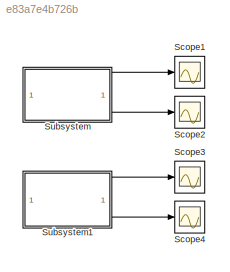
MODEL slx_e83a7e4b726b
KIND model
CONFIG AbsTol = auto
CONFIG EnableMultiTasking = off
CONFIG FixedStep = auto
CONFIG MaxStep = 0.0001
CONFIG MinStep = auto
CONFIG RelTol = 1e-3
CONFIG SampleTimeConstraint = Unconstrained
CONFIG SolverName = VariableStepAuto
CONFIG StartTime = 0.0
CONFIG StopTime = 10
BLOCK [Scope] Scope1
  Floating = off
  NumInputPorts = 1
  ScopeSpecificationString = Simulink.scopes.TimeScopeBlockCfg('CurrentConfiguration', extmgr.ConfigurationSet(extmgr.Configuration('Core','General UI',true),extmgr.Configuration('Core','Source UI',true),extmgr.Configuration('Sources','WiredSimulink',true,'DataLoggingVariableName','ScopeData2'),extmgr.Configuration('Visuals','Time Domain',true,'SerializedDisplays',{struct('MinYLimReal','-0.07025','MaxYLimReal','0.08057','YLab...<+1431ch>
BLOCK [Scope] Scope2
  Floating = off
  NumInputPorts = 1
  ScopeSpecificationString = Simulink.scopes.TimeScopeBlockCfg('CurrentConfiguration', extmgr.ConfigurationSet(extmgr.Configuration('Core','General UI',true),extmgr.Configuration('Core','Source UI',true),extmgr.Configuration('Sources','WiredSimulink',true,'DataLoggingVariableName','ScopeData1'),extmgr.Configuration('Visuals','Time Domain',true,'SerializedDisplays',{struct('MinYLimReal','-0.0664','MaxYLimReal','0.07096','YLabe...<+1405ch>
BLOCK [Scope] Scope3
  Floating = off
  NumInputPorts = 1
  ScopeSpecificationString = Simulink.scopes.TimeScopeBlockCfg('CurrentConfiguration', extmgr.ConfigurationSet(extmgr.Configuration('Core','General UI',true),extmgr.Configuration('Core','Source UI',true),extmgr.Configuration('Sources','WiredSimulink',true,'DataLoggingVariableName','ScopeData1'),extmgr.Configuration('Visuals','Time Domain',true,'SerializedDisplays',{struct('MinYLimReal','-0.07025','MaxYLimReal','0.08057','YLab...<+1430ch>
BLOCK [Scope] Scope4
  Floating = off
  NumInputPorts = 1
  ScopeSpecificationString = Simulink.scopes.TimeScopeBlockCfg('CurrentConfiguration', extmgr.ConfigurationSet(extmgr.Configuration('Core','General UI',true),extmgr.Configuration('Core','Source UI',true),extmgr.Configuration('Sources','WiredSimulink',true,'DataLoggingVariableName','ScopeData2'),extmgr.Configuration('Visuals','Time Domain',true,'SerializedDisplays',{struct('MinYLimReal','-0.06639','MaxYLimReal','0.07096','YLab...<+1406ch>
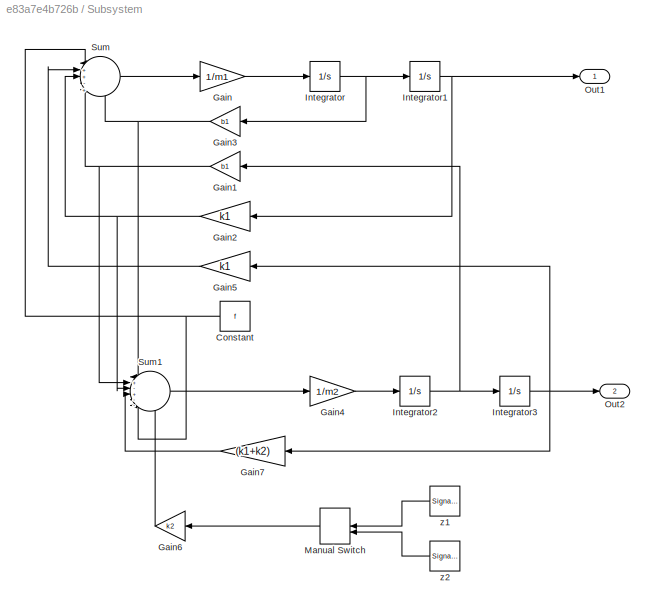
BLOCK [SubSystem] Subsystem
BLOCK [Constant] Subsystem/Constant
  NameLocation = top
  Value = f
BLOCK [Gain] Subsystem/Gain
  Gain = 1/m1
BLOCK [Gain] Subsystem/Gain1
  Gain = b1
  NameLocation = top
BLOCK [Gain] Subsystem/Gain2
  Gain = k1
  NameLocation = top
BLOCK [Gain] Subsystem/Gain3
  Gain = b1
  NameLocation = top
BLOCK [Gain] Subsystem/Gain4
  Gain = 1/m2
BLOCK [Gain] Subsystem/Gain5
  Gain = k1
  NameLocation = top
BLOCK [Gain] Subsystem/Gain6
  Gain = k2
  NameLocation = top
BLOCK [Gain] Subsystem/Gain7
  Gain = (k1+k2)
  NameLocation = top
BLOCK [Integrator] Subsystem/Integrator
BLOCK [Integrator] Subsystem/Integrator1
BLOCK [Integrator] Subsystem/Integrator2
BLOCK [Integrator] Subsystem/Integrator3
BLOCK [ManualSwitch] Subsystem/Manual Switch
  NameLocation = top
BLOCK [Outport] Subsystem/Out1
BLOCK [Outport] Subsystem/Out2
  Port = 2
BLOCK [Sum] Subsystem/Sum
  Inputs = |++-+-
BLOCK [Sum] Subsystem/Sum1
  Inputs = |+-+--+
BLOCK [SignalGenerator] Subsystem/z1
  Amplitude = 0.05
  Frequency = 0.5*pi
  NameLocation = top
  Units = rad/sec
BLOCK [SignalGenerator] Subsystem/z2
  Amplitude = 0.05
  Frequency = 20*pi
  NameLocation = top
  Units = rad/sec
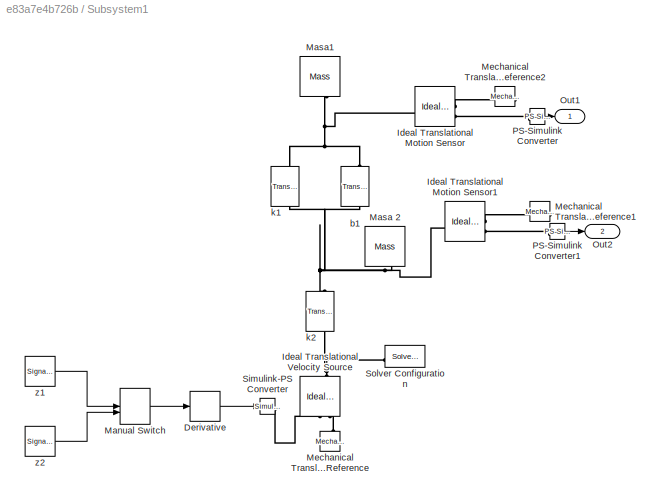
BLOCK [SubSystem] Subsystem1
BLOCK [Derivative] Subsystem1/Derivative
BLOCK [Reference] Subsystem1/Ideal Translational Motion Sensor  REF=fl_lib/Mechanical/Mechanical Sensors/Ideal Translational
Motion Sensor
  SourceBlock = fl_lib/Mechanical/Mechanical Sensors/Ideal Translational\nMotion Sensor
  SourceType = Ideal Translational\nMotion Sensor
BLOCK [Reference] Subsystem1/Ideal Translational Motion Sensor1  REF=fl_lib/Mechanical/Mechanical Sensors/Ideal Translational
Motion Sensor
  SourceBlock = fl_lib/Mechanical/Mechanical Sensors/Ideal Translational\nMotion Sensor
  SourceType = Ideal Translational\nMotion Sensor
BLOCK [Reference] Subsystem1/Ideal Translational Velocity Source  REF=fl_lib/Mechanical/Mechanical Sources/Ideal Translational
Velocity Source
  NameLocation = right
  SourceBlock = fl_lib/Mechanical/Mechanical Sources/Ideal Translational\nVelocity Source
  SourceType = Ideal Translational\nVelocity Source
BLOCK [ManualSwitch] Subsystem1/Manual Switch
BLOCK [Reference] Subsystem1/Masa 2  REF=fl_lib/Mechanical/Translational
Elements/Mass
  NameLocation = left
  SourceBlock = fl_lib/Mechanical/Translational\nElements/Mass
  SourceType = Mass
BLOCK [Reference] Subsystem1/Masa1  REF=fl_lib/Mechanical/Translational
Elements/Mass
  NameLocation = left
  SourceBlock = fl_lib/Mechanical/Translational\nElements/Mass
  SourceType = Mass
BLOCK [Reference] Subsystem1/Mechanical Translational Reference  REF=fl_lib/Mechanical/Translational
Elements/Mechanical
Translational
Reference
  NameLocation = right
  SourceBlock = fl_lib/Mechanical/Translational\nElements/Mechanical\nTranslational\nReference
  SourceType = Mechanical\nTranslational\nReference
BLOCK [Reference] Subsystem1/Mechanical Translational Reference1  REF=fl_lib/Mechanical/Translational
Elements/Mechanical
Translational
Reference
  NameLocation = top
  SourceBlock = fl_lib/Mechanical/Translational\nElements/Mechanical\nTranslational\nReference
  SourceType = Mechanical\nTranslational\nReference
BLOCK [Reference] Subsystem1/Mechanical Translational Reference2  REF=fl_lib/Mechanical/Translational
Elements/Mechanical
Translational
Reference
  NameLocation = top
  SourceBlock = fl_lib/Mechanical/Translational\nElements/Mechanical\nTranslational\nReference
  SourceType = Mechanical\nTranslational\nReference
BLOCK [Outport] Subsystem1/Out1
BLOCK [Outport] Subsystem1/Out2
  Port = 2
BLOCK [Reference] Subsystem1/PS-Simulink Converter  REF=nesl_utility/PS-Simulink
Converter
  SourceBlock = nesl_utility/PS-Simulink\nConverter
  SourceType = PS-Simulink\nConverter
BLOCK [Reference] Subsystem1/PS-Simulink Converter1  REF=nesl_utility/PS-Simulink
Converter
  SourceBlock = nesl_utility/PS-Simulink\nConverter
  SourceType = PS-Simulink\nConverter
BLOCK [Reference] Subsystem1/Simulink-PS Converter  REF=nesl_utility/Simulink-PS
Converter
  SourceBlock = nesl_utility/Simulink-PS\nConverter
  SourceType = Simulink-PS\nConverter
BLOCK [Reference] Subsystem1/Solver Configuration  REF=nesl_utility/Solver
Configuration
  NameLocation = top
  SourceBlock = nesl_utility/Solver\nConfiguration
  SourceType = Solver\nConfiguration
BLOCK [Reference] Subsystem1/b1  REF=fl_lib/Mechanical/Translational
Elements/Translational Damper
  NameLocation = right
  SourceBlock = fl_lib/Mechanical/Translational\nElements/Translational Damper
  SourceType = Translational Damper
BLOCK [Reference] Subsystem1/k1  REF=fl_lib/Mechanical/Translational
Elements/Translational Spring
  NameLocation = right
  SourceBlock = fl_lib/Mechanical/Translational\nElements/Translational Spring
  SourceType = Translational Spring
BLOCK [Reference] Subsystem1/k2  REF=fl_lib/Mechanical/Translational
Elements/Translational Spring
  NameLocation = right
  SourceBlock = fl_lib/Mechanical/Translational\nElements/Translational Spring
  SourceType = Translational Spring
BLOCK [SignalGenerator] Subsystem1/z1
  Amplitude = 0.05
  Frequency = 0.5*pi
  Units = rad/sec
BLOCK [SignalGenerator] Subsystem1/z2
  Amplitude = 0.05
  Frequency = 20*pi
  Units = rad/sec
NET Subsystem/Constant:1 -> Subsystem/Sum1:5, Subsystem/Sum:1
NET Subsystem/Gain1:1 -> Subsystem/Sum1:2, Subsystem/Sum:4
NET Subsystem/Gain2:1 -> Subsystem/Sum1:3, Subsystem/Sum:3
NET Subsystem/Gain3:1 -> Subsystem/Sum1:1, Subsystem/Sum:5
LINE Subsystem/Gain4:1 -> Subsystem/Integrator2:1
LINE Subsystem/Gain5:1 -> Subsystem/Sum:2
LINE Subsystem/Gain6:1 -> Subsystem/Sum1:6
LINE Subsystem/Gain7:1 -> Subsystem/Sum1:4
LINE Subsystem/Gain:1 -> Subsystem/Integrator:1
NET Subsystem/Integrator1:1 -> Subsystem/Gain2:1, Subsystem/Out1:1
NET Subsystem/Integrator2:1 -> Subsystem/Gain1:1, Subsystem/Integrator3:1
NET Subsystem/Integrator3:1 -> Subsystem/Gain5:1, Subsystem/Gain7:1, Subsystem/Out2:1
NET Subsystem/Integrator:1 -> Subsystem/Gain3:1, Subsystem/Integrator1:1
LINE Subsystem/Manual Switch:1 -> Subsystem/Gain6:1
LINE Subsystem/Sum1:1 -> Subsystem/Gain4:1
LINE Subsystem/Sum:1 -> Subsystem/Gain:1
LINE Subsystem/z1:1 -> Subsystem/Manual Switch:1
LINE Subsystem/z2:1 -> Subsystem/Manual Switch:2
LINE Subsystem1/Derivative:1 -> Subsystem1/Simulink-PS Converter:1
LINE Subsystem1/Manual Switch:1 -> Subsystem1/Derivative:1
LINE Subsystem1/PS-Simulink Converter1:1 -> Subsystem1/Out2:1
LINE Subsystem1/PS-Simulink Converter:1 -> Subsystem1/Out1:1
LINE Subsystem1/z1:1 -> Subsystem1/Manual Switch:1
LINE Subsystem1/z2:1 -> Subsystem1/Manual Switch:2
LINE Subsystem1:1 -> Scope3:1
LINE Subsystem1:2 -> Scope4:1
LINE Subsystem:1 -> Scope1:1
LINE Subsystem:2 -> Scope2:1
PNET net1: Subsystem1/Ideal Translational Motion Sensor1:LConn1 -- Subsystem1/Masa 2:LConn1 -- Subsystem1/b1:LConn1 -- Subsystem1/k1:LConn1 -- Subsystem1/k2:RConn1
PLINE Subsystem1/Ideal Translational Motion Sensor1:RConn1 -- Subsystem1/Mechanical Translational Reference1:LConn1
PLINE Subsystem1/Ideal Translational Motion Sensor1:RConn2 -- Subsystem1/PS-Simulink Converter1:LConn1
PNET net2: Subsystem1/Ideal Translational Motion Sensor:LConn1 -- Subsystem1/Masa1:LConn1 -- Subsystem1/b1:RConn1 -- Subsystem1/k1:RConn1
PLINE Subsystem1/Ideal Translational Motion Sensor:RConn1 -- Subsystem1/Mechanical Translational Reference2:LConn1
PLINE Subsystem1/Ideal Translational Motion Sensor:RConn2 -- Subsystem1/PS-Simulink Converter:LConn1
PNET net3: Subsystem1/Ideal Translational Velocity Source:LConn1 -- Subsystem1/Solver Configuration:RConn1 -- Subsystem1/k2:LConn1
PLINE Subsystem1/Ideal Translational Velocity Source:RConn1 -- Subsystem1/Simulink-PS Converter:RConn1
PLINE Subsystem1/Ideal Translational Velocity Source:RConn2 -- Subsystem1/Mechanical Translational Reference:LConn1
note: NET lines group one-source signal fan-out (src -> all destinations, sorted); 1:1 wires keep LINE; PNET lines group multi-terminal physical nets as a canonical sorted terminal list (undirected conserving connections); 2-terminal nets keep the pairwise PLINE form
